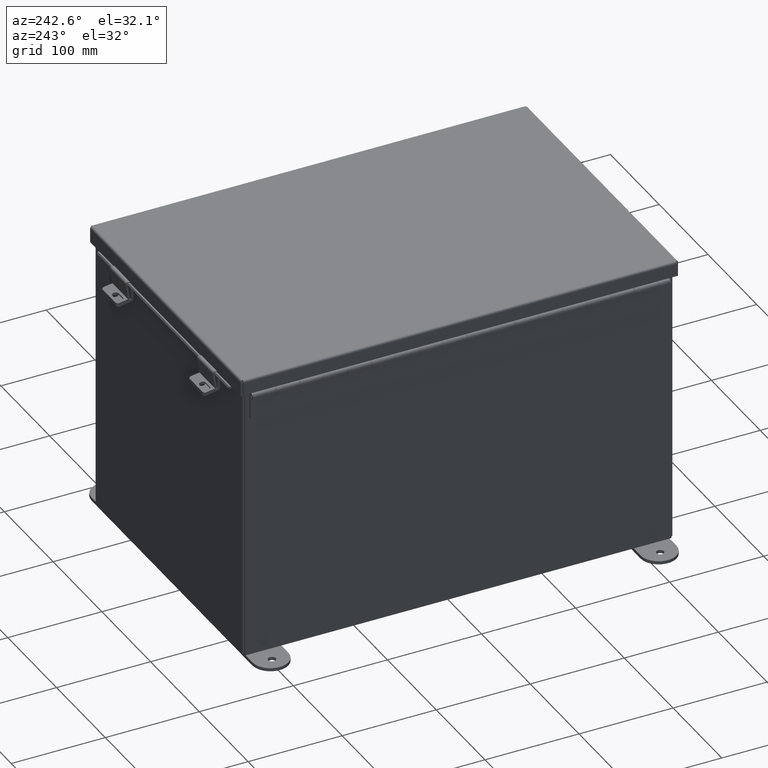
[diagram: clean part render]
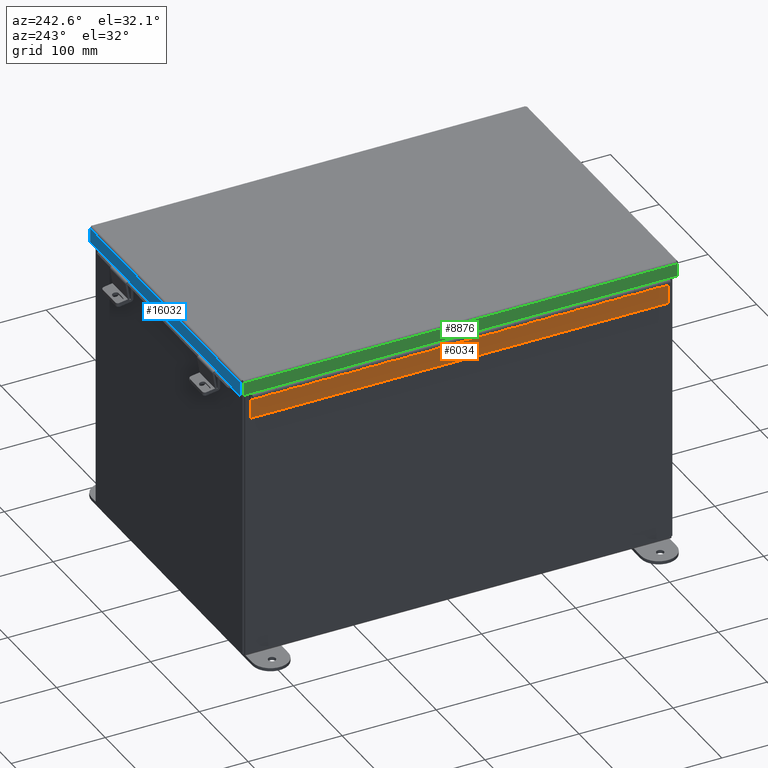
[diagram: same view with three faces highlighted in distinct colors, each labeled with its STEP entity id]
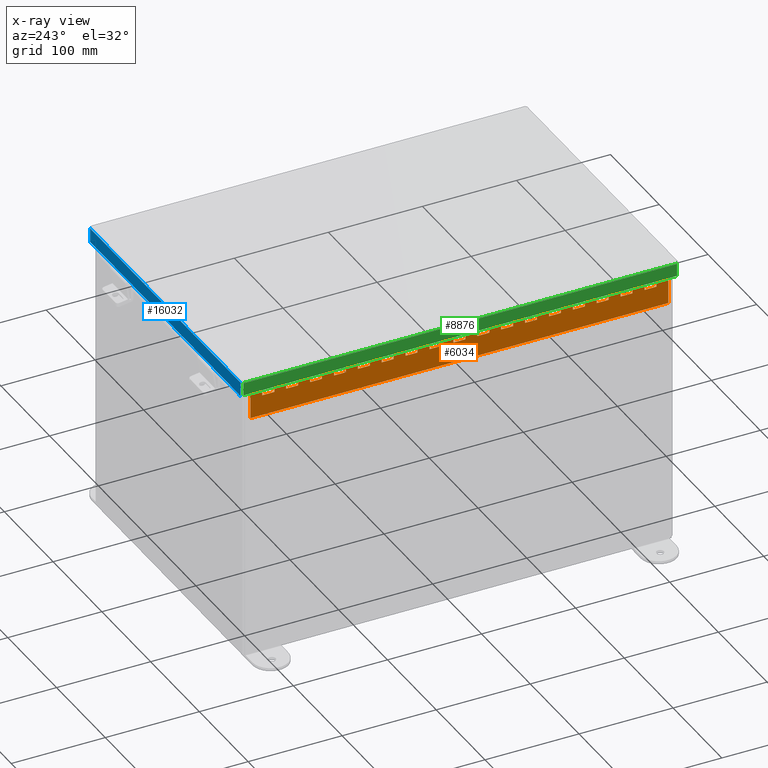
[diagram: x-ray of the same camera — body ghosted, the three highlighted faces saturated]
A machine part, auxiliary view with three faces highlighted in distinct colors.
The next image is the same camera in x-ray (body ghosted, the three faces saturated) — at least one of them is partly hidden behind the body in this view.
Their STEP definitions:

[orange] entity #6034 — the highlighted planar face has unit normal (1, -0, 0).
#38 = LINE ( 'NONE', #8423, #15231 ) ;
#95 = VERTEX_POINT ( 'NONE', #12333 ) ;
#100 = CARTESIAN_POINT ( 'NONE',  ( 0.1365000000000000400, 5.999999999999999100, 0.0000000000000000000 ) ) ;
#124 = ORIENTED_EDGE ( 'NONE', *, *, #18738, .T. ) ;
#129 = VERTEX_POINT ( 'NONE', #3945 ) ;
#144 = VERTEX_POINT ( 'NONE', #11291 ) ;
#153 = ORIENTED_EDGE ( 'NONE', *, *, #5771, .F. ) ;
#183 = VERTEX_POINT ( 'NONE', #10772 ) ;
#192 = EDGE_CURVE ( 'NONE', #2970, #16807, #1254, .T. ) ;
#195 = EDGE_CURVE ( 'NONE', #11732, #13993, #5187, .T. ) ;
#196 = CARTESIAN_POINT ( 'NONE',  ( 0.1364999999999760000, 13.00000000000000200, 0.0000000000000000000 ) ) ;
#204 = VERTEX_POINT ( 'NONE', #16718 ) ;
#244 = EDGE_CURVE ( 'NONE', #10377, #1183, #15499, .T. ) ;
#294 = ORIENTED_EDGE ( 'NONE', *, *, #8381, .F. ) ;
#312 = EDGE_CURVE ( 'NONE', #7252, #12183, #11566, .T. ) ;
#314 = EDGE_CURVE ( 'NONE', #3367, #3212, #14573, .T. ) ;
#352 = ORIENTED_EDGE ( 'NONE', *, *, #715, .T. ) ;
#361 = DIRECTION ( 'NONE',  ( -1.000000000000000000, 8.013101163815309000E-029, 2.603240987229339000E-029 ) ) ;
#444 = CARTESIAN_POINT ( 'NONE',  ( 1.354996604857474700E-013, 7.000000000000002700, 0.0000000000000000000 ) ) ;
#465 = DIRECTION ( 'NONE',  ( -1.000000000000000000, 8.005415366049211700E-015, 2.603240987229339000E-029 ) ) ;
#477 = DIRECTION ( 'NONE',  ( -1.000000000000000000, 8.013101163815309000E-029, 2.603240987229339000E-029 ) ) ;
#544 = CARTESIAN_POINT ( 'NONE',  ( 0.2730000000000000800, 0.5000000000000017800, 0.0000000000000000000 ) ) ;
#595 = CARTESIAN_POINT ( 'NONE',  ( 0.2729999999999760400, -4.999999999999999100, 0.0000000000000000000 ) ) ;
#603 = EDGE_CURVE ( 'NONE', #16024, #7019, #17812, .T. ) ;
#608 = CARTESIAN_POINT ( 'NONE',  ( 0.1365000000000000400, 7.999999999999997300, 0.0000000000000000000 ) ) ;
#655 = CARTESIAN_POINT ( 'NONE',  ( 0.0000000000000000000, 0.5000000000000017800, 0.0000000000000000000 ) ) ;
#697 = DIRECTION ( 'NONE',  ( -8.013101163815309000E-029, 1.000000000000000000, -1.066893105081175000E-030 ) ) ;
#715 = EDGE_CURVE ( 'NONE', #16024, #16790, #8144, .T. ) ;
#832 = LINE ( 'NONE', #5658, #19041 ) ;
#905 = CARTESIAN_POINT ( 'NONE',  ( 0.1365000000000000400, 0.0000000000000000000, 0.0000000000000000000 ) ) ;
#909 = LINE ( 'NONE', #7781, #4366 ) ;
#912 = LINE ( 'NONE', #17784, #16600 ) ;
#938 = CARTESIAN_POINT ( 'NONE',  ( 1.136448765364333600E-013, 11.00000000000000200, 0.0000000000000000000 ) ) ;
#965 = CARTESIAN_POINT ( 'NONE',  ( 0.1365000000000000400, 0.5000000000000017800, 0.0000000000000000000 ) ) ;
#983 = DIRECTION ( 'NONE',  ( -8.013101163815309000E-029, 1.000000000000000000, -1.066893105081175000E-030 ) ) ;
#1007 = VECTOR ( 'NONE', #10651, 39.37007874015748100 ) ;
#1019 = CARTESIAN_POINT ( 'NONE',  ( 1.136499999999999200, 0.0000000000000000000, 0.0000000000000000000 ) ) ;
#1097 = LINE ( 'NONE', #9145, #1565 ) ;
#1110 = EDGE_CURVE ( 'NONE', #14737, #5437, #6536, .T. ) ;
#1144 = DIRECTION ( 'NONE',  ( -8.013101163815309000E-029, 1.000000000000000000, -1.066893105081175000E-030 ) ) ;
#1183 = VERTEX_POINT ( 'NONE', #2029 ) ;
#1189 = CARTESIAN_POINT ( 'NONE',  ( 0.1365000000000000400, 7.500000000000000000, -1.202013117212275700E-014 ) ) ;
#1254 = LINE ( 'NONE', #10380, #16452 ) ;
#1299 = EDGE_CURVE ( 'NONE', #129, #1835, #11079, .T. ) ;
#1324 = DIRECTION ( 'NONE',  ( -8.013101163815309000E-029, 1.000000000000000000, -1.066893105081175000E-030 ) ) ;
#1345 = CARTESIAN_POINT ( 'NONE',  ( 0.2729999999999760400, -2.999999999999996400, 0.0000000000000000000 ) ) ;
#1365 = DIRECTION ( 'NONE',  ( -1.000000000000000000, 8.013101163815309000E-029, 2.603240987229339000E-029 ) ) ;
#1423 = DIRECTION ( 'NONE',  ( -8.013101163815309000E-029, 1.000000000000000000, -1.066893105081175000E-030 ) ) ;
#1477 = LINE ( 'NONE', #19115, #8363 ) ;
#1501 = DIRECTION ( 'NONE',  ( -1.000000000000000000, 8.013101163815309000E-029, 2.603240987229339000E-029 ) ) ;
#1549 = CARTESIAN_POINT ( 'NONE',  ( 1.136499999999975200, 17.50000000000000000, 1.202013117212275700E-014 ) ) ;
#1554 = EDGE_CURVE ( 'NONE', #14721, #3367, #11302, .T. ) ;
#1565 = VECTOR ( 'NONE', #2058, 39.37007874015748100 ) ;
#1649 = CARTESIAN_POINT ( 'NONE',  ( 0.1364999999999760000, 17.00000000000000000, 0.0000000000000000000 ) ) ;
#1688 = CARTESIAN_POINT ( 'NONE',  ( 0.2729999999999760400, -9.000000000000000000, 0.0000000000000000000 ) ) ;
#1695 = CARTESIAN_POINT ( 'NONE',  ( 0.2730000000000000800, 5.000000000000000000, 0.0000000000000000000 ) ) ;
#1729 = ORIENTED_EDGE ( 'NONE', *, *, #2931, .F. ) ;
#1740 = CARTESIAN_POINT ( 'NONE',  ( 1.136448765364333600E-013, 16.00000000000000400, 0.0000000000000000000 ) ) ;
#1756 = ORIENTED_EDGE ( 'NONE', *, *, #13957, .F. ) ;
#1766 = DIRECTION ( 'NONE',  ( 1.000000000000000000, -8.013101163815309000E-029, -2.603240987229339000E-029 ) ) ;
#1817 = EDGE_CURVE ( 'NONE', #13805, #8591, #14971, .T. ) ;
#1834 = CARTESIAN_POINT ( 'NONE',  ( 0.1364999999999978500, 10.50000000000000200, 0.0000000000000000000 ) ) ;
#1835 = VERTEX_POINT ( 'NONE', #15294 ) ;
#1929 = ORIENTED_EDGE ( 'NONE', *, *, #10341, .T. ) ;
#1962 = LINE ( 'NONE', #16345, #17143 ) ;
#1992 = CARTESIAN_POINT ( 'NONE',  ( 0.1364999999999760000, 15.50000000000000200, -1.202013117212275700E-014 ) ) ;
#2005 = VERTEX_POINT ( 'NONE', #11060 ) ;
#2023 = CARTESIAN_POINT ( 'NONE',  ( 0.1364999999999760000, 16.00000000000000400, 0.0000000000000000000 ) ) ;
#2028 = CARTESIAN_POINT ( 'NONE',  ( 0.0000000000000000000, 9.500000000000003600, 0.0000000000000000000 ) ) ;
#2029 = CARTESIAN_POINT ( 'NONE',  ( 0.1365000000000000400, 10.00000000000000000, 0.0000000000000000000 ) ) ;
#2042 = CARTESIAN_POINT ( 'NONE',  ( 0.2730000000000000800, -12.00000000000004300, 0.0000000000000000000 ) ) ;
#2058 = DIRECTION ( 'NONE',  ( -8.013101163815309000E-029, 1.000000000000000000, -1.066893105081175000E-030 ) ) ;
#2099 = VERTEX_POINT ( 'NONE', #9746 ) ;
#2100 = CARTESIAN_POINT ( 'NONE',  ( 0.2730000000000000800, 7.500000000000000000, 0.0000000000000000000 ) ) ;
#2156 = DIRECTION ( 'NONE',  ( -1.000000000000000000, 8.013101163815309000E-029, 2.603240987229339000E-029 ) ) ;
#2199 = EDGE_CURVE ( 'NONE', #13706, #5627, #18870, .T. ) ;
#2210 = CARTESIAN_POINT ( 'NONE',  ( -2.404026234424551500E-014, 14.50000000000000200, 1.202013117212275700E-014 ) ) ;
#2240 = CARTESIAN_POINT ( 'NONE',  ( -2.404026234424551500E-014, 12.50000000000000000, 0.0000000000000000000 ) ) ;
#2265 = VERTEX_POINT ( 'NONE', #5227 ) ;
#2341 = LINE ( 'NONE', #444, #13572 ) ;
#2387 = CARTESIAN_POINT ( 'NONE',  ( -2.404026234424551500E-014, 13.50000000000000200, 0.0000000000000000000 ) ) ;
#2459 = EDGE_CURVE ( 'NONE', #204, #15322, #14671, .T. ) ;
#2484 = VERTEX_POINT ( 'NONE', #1649 ) ;
#2491 = ORIENTED_EDGE ( 'NONE', *, *, #16812, .F. ) ;
#2492 = DIRECTION ( 'NONE',  ( -2.603240987229339000E-029, 1.066893105080910400E-030, -1.000000000000000000 ) ) ;
#2514 = VERTEX_POINT ( 'NONE', #2865 ) ;
#2564 = EDGE_CURVE ( 'NONE', #12861, #14060, #11895, .T. ) ;
#2568 = DIRECTION ( 'NONE',  ( -8.013101163815309000E-029, 1.000000000000000000, -1.066893105081175000E-030 ) ) ;
#2754 = CARTESIAN_POINT ( 'NONE',  ( 0.1365000000000000400, 0.0000000000000000000, 0.0000000000000000000 ) ) ;
#2832 = VECTOR ( 'NONE', #4100, 39.37007874015748100 ) ;
#2865 = CARTESIAN_POINT ( 'NONE',  ( 0.1365000000000000400, 9.000000000000001800, 0.0000000000000000000 ) ) ;
#2881 = VECTOR ( 'NONE', #2980, 39.37007874015748100 ) ;
#2931 = EDGE_CURVE ( 'NONE', #13805, #204, #1097, .T. ) ;
#2938 = DIRECTION ( 'NONE',  ( -1.000000000000000000, 8.013101163815309000E-029, 2.603240987229339000E-029 ) ) ;
#2950 = LINE ( 'NONE', #11375, #18132 ) ;
#2970 = VERTEX_POINT ( 'NONE', #17928 ) ;
#2980 = DIRECTION ( 'NONE',  ( -1.000000000000000000, 8.013101163815309000E-029, 2.603240987229339000E-029 ) ) ;
#2985 = VECTOR ( 'NONE', #3915, 39.37007874015748100 ) ;
#3080 = VECTOR ( 'NONE', #13561, 39.37007874015748100 ) ;
#3170 = DIRECTION ( 'NONE',  ( -8.013101163815309000E-029, 1.000000000000000000, -1.066893105081175000E-030 ) ) ;
#3212 = VERTEX_POINT ( 'NONE', #3750 ) ;
#3251 = VECTOR ( 'NONE', #15546, 39.37007874015748100 ) ;
#3258 = EDGE_CURVE ( 'NONE', #4843, #17446, #8233, .T. ) ;
#3314 = DIRECTION ( 'NONE',  ( -8.013101163815309000E-029, 1.000000000000000000, -1.066893105081175000E-030 ) ) ;
#3329 = LINE ( 'NONE', #9907, #10629 ) ;
#3367 = VERTEX_POINT ( 'NONE', #196 ) ;
#3384 = VECTOR ( 'NONE', #3809, 39.37007874015748100 ) ;
#3456 = LINE ( 'NONE', #12567, #2985 ) ;
#3500 = DIRECTION ( 'NONE',  ( -8.013101163815309000E-029, 1.000000000000000000, -1.066893105081175000E-030 ) ) ;
#3542 = EDGE_CURVE ( 'NONE', #13484, #17568, #7993, .T. ) ;
#3585 = CARTESIAN_POINT ( 'NONE',  ( 0.1365000000000000400, 3.999999999999991600, 0.0000000000000000000 ) ) ;
#3604 = EDGE_CURVE ( 'NONE', #17446, #12074, #10475, .T. ) ;
#3677 = VECTOR ( 'NONE', #983, 39.37007874015748100 ) ;
#3703 = VECTOR ( 'NONE', #11505, 39.37007874015748100 ) ;
#3711 = EDGE_CURVE ( 'NONE', #129, #3212, #4763, .T. ) ;
#3746 = VECTOR ( 'NONE', #8564, 39.37007874015748100 ) ;
#3750 = CARTESIAN_POINT ( 'NONE',  ( 0.1364999999999760000, 13.50000000000000200, 0.0000000000000000000 ) ) ;
#3809 = DIRECTION ( 'NONE',  ( -8.013101163815309000E-029, 1.000000000000000000, -1.066893105081175000E-030 ) ) ;
#3842 = VERTEX_POINT ( 'NONE', #11331 ) ;
#3868 = VECTOR ( 'NONE', #1766, 39.37007874015748100 ) ;
#3915 = DIRECTION ( 'NONE',  ( -1.000000000000000000, 8.013101163815309000E-029, 2.603240987229339000E-029 ) ) ;
#3925 = VERTEX_POINT ( 'NONE', #5478 ) ;
#3945 = CARTESIAN_POINT ( 'NONE',  ( 0.2729999999999760400, 13.50000000000000200, 0.0000000000000000000 ) ) ;
#3956 = DIRECTION ( 'NONE',  ( -8.013101163815309000E-029, 1.000000000000000000, -1.066893105081175000E-030 ) ) ;
#3981 = LINE ( 'NONE', #9419, #9914 ) ;
#4015 = CARTESIAN_POINT ( 'NONE',  ( 0.1364999999999760000, 11.00000000000000200, -1.202013117212275700E-014 ) ) ;
#4091 = VECTOR ( 'NONE', #13651, 39.37007874015748100 ) ;
#4093 = CARTESIAN_POINT ( 'NONE',  ( 0.2730000000000000800, 2.500000000000000000, 1.202013117212275700E-014 ) ) ;
#4096 = EDGE_CURVE ( 'NONE', #5858, #11599, #17872, .T. ) ;
#4100 = DIRECTION ( 'NONE',  ( -8.013101163815309000E-029, 1.000000000000000000, -1.066893105081175000E-030 ) ) ;
#4200 = EDGE_CURVE ( 'NONE', #11915, #14721, #15070, .T. ) ;
#4215 = ORIENTED_EDGE ( 'NONE', *, *, #7597, .F. ) ;
#4262 = CARTESIAN_POINT ( 'NONE',  ( 0.1364999999999760000, 14.50000000000000200, 0.0000000000000000000 ) ) ;
#4339 = LINE ( 'NONE', #9850, #15604 ) ;
#4366 = VECTOR ( 'NONE', #477, 39.37007874015748100 ) ;
#4391 = DIRECTION ( 'NONE',  ( -8.013101163815309000E-029, 1.000000000000000000, -1.066893105081175000E-030 ) ) ;
#4446 = CARTESIAN_POINT ( 'NONE',  ( 1.354996604857474700E-013, 8.000000000000001800, 0.0000000000000000000 ) ) ;
#4512 = ORIENTED_EDGE ( 'NONE', *, *, #14291, .T. ) ;
#4521 = CARTESIAN_POINT ( 'NONE',  ( 0.2730000000000000800, 5.999999999999999100, 1.202013117212275700E-014 ) ) ;
#4534 = ORIENTED_EDGE ( 'NONE', *, *, #1110, .F. ) ;
#4541 = CARTESIAN_POINT ( 'NONE',  ( 0.1365000000000000400, 0.0000000000000000000, 0.0000000000000000000 ) ) ;
#4602 = VECTOR ( 'NONE', #697, 39.37007874015748100 ) ;
#4645 = ORIENTED_EDGE ( 'NONE', *, *, #5965, .F. ) ;
#4656 = DIRECTION ( 'NONE',  ( -8.013101163815309000E-029, 1.000000000000000000, -1.066893105081175000E-030 ) ) ;
#4703 = EDGE_CURVE ( 'NONE', #4994, #16060, #15514, .T. ) ;
#4711 = VECTOR ( 'NONE', #17026, 39.37007874015748100 ) ;
#4763 = LINE ( 'NONE', #2387, #8216 ) ;
#4843 = VERTEX_POINT ( 'NONE', #13226 ) ;
#4910 = EDGE_CURVE ( 'NONE', #15322, #95, #17163, .T. ) ;
#4916 = LINE ( 'NONE', #2754, #16192 ) ;
#4934 = LINE ( 'NONE', #14718, #1007 ) ;
#4994 = VERTEX_POINT ( 'NONE', #4015 ) ;
#5011 = VERTEX_POINT ( 'NONE', #2100 ) ;
#5058 = DIRECTION ( 'NONE',  ( -8.013101163815309000E-029, 1.000000000000000000, -1.066893105081175000E-030 ) ) ;
#5102 = EDGE_CURVE ( 'NONE', #8743, #11862, #17375, .T. ) ;
#5131 = EDGE_CURVE ( 'NONE', #12591, #2265, #9503, .T. ) ;
#5181 = VECTOR ( 'NONE', #11794, 39.37007874015748100 ) ;
#5187 = LINE ( 'NONE', #12560, #15987 ) ;
#5189 = ORIENTED_EDGE ( 'NONE', *, *, #2459, .F. ) ;
#5220 = VECTOR ( 'NONE', #17202, 39.37007874015748100 ) ;
#5227 = CARTESIAN_POINT ( 'NONE',  ( 0.1365000000000000400, 5.000000000000000000, 0.0000000000000000000 ) ) ;
#5256 = CARTESIAN_POINT ( 'NONE',  ( 0.0000000000000000000, 0.0000000000000000000, 0.0000000000000000000 ) ) ;
#5258 = CARTESIAN_POINT ( 'NONE',  ( 0.1364999999999760000, 16.50000000000000000, 0.0000000000000000000 ) ) ;
#5308 = CARTESIAN_POINT ( 'NONE',  ( 0.1365000000000000400, 0.9999999999999992200, 0.0000000000000000000 ) ) ;
#5372 = EDGE_CURVE ( 'NONE', #7019, #5858, #1962, .T. ) ;
#5416 = VERTEX_POINT ( 'NONE', #8844 ) ;
#5437 = VERTEX_POINT ( 'NONE', #17408 ) ;
#5478 = CARTESIAN_POINT ( 'NONE',  ( 0.2730000000000000800, 9.000000000000001800, 0.0000000000000000000 ) ) ;
#5598 = VERTEX_POINT ( 'NONE', #11174 ) ;
#5627 = VERTEX_POINT ( 'NONE', #608 ) ;
#5658 = CARTESIAN_POINT ( 'NONE',  ( 0.2730000000000000800, -15.00000000000004400, 0.0000000000000000000 ) ) ;
#5711 = VECTOR ( 'NONE', #8368, 39.37007874015748100 ) ;
#5716 = CARTESIAN_POINT ( 'NONE',  ( 0.1365000000000000400, 0.0000000000000000000, 0.0000000000000000000 ) ) ;
#5722 = DIRECTION ( 'NONE',  ( -1.000000000000000000, 8.013101163815309000E-029, 2.603240987229339000E-029 ) ) ;
#5765 = VECTOR ( 'NONE', #13824, 39.37007874015748100 ) ;
#5771 = EDGE_CURVE ( 'NONE', #17568, #16807, #3329, .T. ) ;
#5858 = VERTEX_POINT ( 'NONE', #100 ) ;
#5965 = EDGE_CURVE ( 'NONE', #2099, #15695, #38, .T. ) ;
#5971 = ORIENTED_EDGE ( 'NONE', *, *, #16318, .F. ) ;
#5996 = VECTOR ( 'NONE', #3314, 39.37007874015748100 ) ;
#6031 = LINE ( 'NONE', #2042, #17308 ) ;
#6034 = ADVANCED_FACE ( 'NONE', ( #6531 ), #9883, .F. ) ;
#6057 = CARTESIAN_POINT ( 'NONE',  ( 1.136448765364333600E-013, 15.00000000000000000, 0.0000000000000000000 ) ) ;
#6102 = CARTESIAN_POINT ( 'NONE',  ( 0.1365000000000000400, 0.0000000000000000000, 0.0000000000000000000 ) ) ;
#6148 = EDGE_CURVE ( 'NONE', #8570, #3842, #16417, .T. ) ;
#6187 = DIRECTION ( 'NONE',  ( -8.013101163815309000E-029, 1.000000000000000000, -1.066893105081175000E-030 ) ) ;
#6208 = DIRECTION ( 'NONE',  ( -8.013101163815309000E-029, 1.000000000000000000, -1.066893105081175000E-030 ) ) ;
#6215 = ORIENTED_EDGE ( 'NONE', *, *, #14699, .F. ) ;
#6243 = CARTESIAN_POINT ( 'NONE',  ( 0.2729999999999760400, -4.000000000000000000, 0.0000000000000000000 ) ) ;
#6258 = DIRECTION ( 'NONE',  ( -1.000000000000000000, 8.005415366049211700E-015, 2.603240987229339000E-029 ) ) ;
#6323 = CARTESIAN_POINT ( 'NONE',  ( 0.2730000000000000800, -14.00000000000005000, 1.202013117212275700E-014 ) ) ;
#6332 = DIRECTION ( 'NONE',  ( -1.000000000000000000, 8.013101163815311200E-029, 2.603240987229339500E-029 ) ) ;
#6441 = ORIENTED_EDGE ( 'NONE', *, *, #192, .T. ) ;
#6491 = LINE ( 'NONE', #6543, #9895 ) ;
#6531 = FACE_OUTER_BOUND ( 'NONE', #6651, .T. ) ;
#6536 = LINE ( 'NONE', #16390, #6988 ) ;
#6543 = CARTESIAN_POINT ( 'NONE',  ( 0.1365000000000000400, 0.0000000000000000000, 0.0000000000000000000 ) ) ;
#6579 = EDGE_CURVE ( 'NONE', #2484, #10755, #14303, .T. ) ;
#6600 = CARTESIAN_POINT ( 'NONE',  ( 0.0000000000000000000, 6.500000000000000900, 1.202013117212275700E-014 ) ) ;
#6613 = CARTESIAN_POINT ( 'NONE',  ( 0.1365000000000000400, 2.000000000000002700, 0.0000000000000000000 ) ) ;
#6651 = EDGE_LOOP ( 'NONE', ( #17792, #18322, #18521, #19027, #14526, #18474, #10405, #294, #14099, #12736, #17346, #9474, #6441, #153, #14876, #17628, #13992, #5971, #17047, #7345, #15421, #7114, #12116, #10754, #11270, #6215, #4645, #14415, #15404, #6693, #13903, #11153, #14612, #11941, #15364, #14128, #11231, #15755, #17036, #8524, #1929, #9263, #7175, #8826, #4512, #13298, #13083, #1756, #124, #14840, #10211, #17634, #352, #8641, #8419, #13936, #15095, #11408, #14414, #7290, #15811, #4534, #17152, #4215, #17879, #2491, #11392, #17338, #15989, #15014, #5189, #1729 ) ) ;
#6659 = DIRECTION ( 'NONE',  ( -8.013101163815309000E-029, 1.000000000000000000, -1.066893105081175000E-030 ) ) ;
#6662 = DIRECTION ( 'NONE',  ( -8.013101163815309000E-029, 1.000000000000000000, -1.066893105081175000E-030 ) ) ;
#6693 = ORIENTED_EDGE ( 'NONE', *, *, #4703, .F. ) ;
#6802 = VECTOR ( 'NONE', #15657, 39.37007874015748100 ) ;
#6815 = CARTESIAN_POINT ( 'NONE',  ( -2.404026234424551500E-014, 11.50000000000000200, 0.0000000000000000000 ) ) ;
#6988 = VECTOR ( 'NONE', #6187, 39.37007874015748100 ) ;
#7005 = CARTESIAN_POINT ( 'NONE',  ( 1.136499999999977400, 17.50000000000000000, 1.202013117212275700E-014 ) ) ;
#7019 = VERTEX_POINT ( 'NONE', #4521 ) ;
#7048 = CARTESIAN_POINT ( 'NONE',  ( 0.2729999999999978600, 10.00000000000000000, 1.202013117212275700E-014 ) ) ;
#7114 = ORIENTED_EDGE ( 'NONE', *, *, #314, .F. ) ;
#7115 = VERTEX_POINT ( 'NONE', #15566 ) ;
#7116 = VECTOR ( 'NONE', #18562, 39.37007874015748100 ) ;
#7175 = ORIENTED_EDGE ( 'NONE', *, *, #2199, .F. ) ;
#7194 = VECTOR ( 'NONE', #14204, 39.37007874015748100 ) ;
#7219 = DIRECTION ( 'NONE',  ( -1.000000000000000000, 8.013101163815309000E-029, 2.603240987229339000E-029 ) ) ;
#7252 = VERTEX_POINT ( 'NONE', #11029 ) ;
#7290 = ORIENTED_EDGE ( 'NONE', *, *, #17197, .F. ) ;
#7345 = ORIENTED_EDGE ( 'NONE', *, *, #1299, .F. ) ;
#7374 = LINE ( 'NONE', #2028, #10319 ) ;
#7407 = VECTOR ( 'NONE', #9168, 39.37007874015748100 ) ;
#7463 = LINE ( 'NONE', #9452, #12273 ) ;
#7492 = AXIS2_PLACEMENT_3D ( 'NONE', #1549, #2492, #361 ) ;
#7564 = EDGE_CURVE ( 'NONE', #7115, #11813, #7374, .T. ) ;
#7566 = CARTESIAN_POINT ( 'NONE',  ( 0.1365000000000000400, 0.0000000000000000000, 0.0000000000000000000 ) ) ;
#7597 = EDGE_CURVE ( 'NONE', #12819, #13531, #13803, .T. ) ;
#7657 = VERTEX_POINT ( 'NONE', #10904 ) ;
#7659 = CARTESIAN_POINT ( 'NONE',  ( 0.0000000000000000000, 1.500000000000000900, 0.0000000000000000000 ) ) ;
#7731 = EDGE_CURVE ( 'NONE', #5011, #13706, #8505, .T. ) ;
#7781 = CARTESIAN_POINT ( 'NONE',  ( -2.404026234424551500E-014, 10.50000000000000200, 1.202013117212275700E-014 ) ) ;
#7805 = EDGE_CURVE ( 'NONE', #12819, #16229, #12418, .T. ) ;
#7812 = VECTOR ( 'NONE', #4656, 39.37007874015748100 ) ;
#7820 = LINE ( 'NONE', #14132, #15623 ) ;
#7836 = EDGE_CURVE ( 'NONE', #7657, #16060, #11018, .T. ) ;
#7986 = EDGE_CURVE ( 'NONE', #11732, #17886, #909, .T. ) ;
#7993 = LINE ( 'NONE', #6057, #4091 ) ;
#8066 = DIRECTION ( 'NONE',  ( -8.013101163815309000E-029, 1.000000000000000000, -1.066893105081175000E-030 ) ) ;
#8092 = DIRECTION ( 'NONE',  ( -1.000000000000000000, 8.005415366049211700E-015, 2.603240987229339000E-029 ) ) ;
#8108 = CARTESIAN_POINT ( 'NONE',  ( 0.0000000000000000000, 5.500000000000001800, 0.0000000000000000000 ) ) ;
#8121 = DIRECTION ( 'NONE',  ( -1.000000000000000000, 8.005415366049211700E-015, 2.603240987229339000E-029 ) ) ;
#8144 = LINE ( 'NONE', #8108, #12498 ) ;
#8216 = VECTOR ( 'NONE', #7219, 39.37007874015748100 ) ;
#8233 = LINE ( 'NONE', #5256, #3868 ) ;
#8235 = EDGE_CURVE ( 'NONE', #2970, #14707, #15656, .T. ) ;
#8363 = VECTOR ( 'NONE', #13984, 39.37007874015748100 ) ;
#8368 = DIRECTION ( 'NONE',  ( -1.000000000000000000, 8.005415366049211700E-015, 2.603240987229339000E-029 ) ) ;
#8381 = EDGE_CURVE ( 'NONE', #7252, #16079, #17282, .T. ) ;
#8413 = CARTESIAN_POINT ( 'NONE',  ( 0.2730000000000000800, -0.9999999999999992200, 0.0000000000000000000 ) ) ;
#8419 = ORIENTED_EDGE ( 'NONE', *, *, #5131, .F. ) ;
#8423 = CARTESIAN_POINT ( 'NONE',  ( 1.136448765364333600E-013, 12.00000000000000200, 0.0000000000000000000 ) ) ;
#8505 = LINE ( 'NONE', #1688, #4602 ) ;
#8524 = ORIENTED_EDGE ( 'NONE', *, *, #14268, .F. ) ;
#8533 = LINE ( 'NONE', #18902, #15926 ) ;
#8561 = EDGE_CURVE ( 'NONE', #11915, #183, #9645, .T. ) ;
#8564 = DIRECTION ( 'NONE',  ( -1.000000000000000000, 8.013101163815309000E-029, 2.603240987229339000E-029 ) ) ;
#8570 = VERTEX_POINT ( 'NONE', #3585 ) ;
#8591 = VERTEX_POINT ( 'NONE', #965 ) ;
#8613 = EDGE_CURVE ( 'NONE', #5416, #8570, #912, .T. ) ;
#8641 = ORIENTED_EDGE ( 'NONE', *, *, #18878, .F. ) ;
#8724 = VECTOR ( 'NONE', #8092, 39.37007874015748100 ) ;
#8743 = VERTEX_POINT ( 'NONE', #12025 ) ;
#8826 = ORIENTED_EDGE ( 'NONE', *, *, #7731, .F. ) ;
#8844 = CARTESIAN_POINT ( 'NONE',  ( 0.2730000000000000800, 3.999999999999991600, 0.0000000000000000000 ) ) ;
#8859 = DIRECTION ( 'NONE',  ( -1.000000000000000000, 8.005415366049211700E-015, 2.603240987229339000E-029 ) ) ;
#8874 = DIRECTION ( 'NONE',  ( -8.013101163815309000E-029, 1.000000000000000000, -1.066893105081175000E-030 ) ) ;
#8889 = CARTESIAN_POINT ( 'NONE',  ( 0.2730000000000000800, -13.00000000000003700, 0.0000000000000000000 ) ) ;
#8985 = DIRECTION ( 'NONE',  ( -1.000000000000000000, 8.005415366049211700E-015, 2.603240987229339000E-029 ) ) ;
#8994 = VECTOR ( 'NONE', #10820, 39.37007874015748100 ) ;
#9057 = CARTESIAN_POINT ( 'NONE',  ( 0.1364999999999760000, 11.50000000000000200, -1.202013117212275700E-014 ) ) ;
#9145 = CARTESIAN_POINT ( 'NONE',  ( 0.2730000000000000800, -16.00000000000003900, 0.0000000000000000000 ) ) ;
#9168 = DIRECTION ( 'NONE',  ( -1.000000000000000000, 8.005415366049211700E-015, 2.603240987229339000E-029 ) ) ;
#9173 = CARTESIAN_POINT ( 'NONE',  ( 0.1365000000000000400, 0.0000000000000000000, 0.0000000000000000000 ) ) ;
#9256 = CARTESIAN_POINT ( 'NONE',  ( 0.1365000000000000400, 0.0000000000000000000, 0.0000000000000000000 ) ) ;
#9263 = ORIENTED_EDGE ( 'NONE', *, *, #10605, .F. ) ;
#9322 = CARTESIAN_POINT ( 'NONE',  ( 0.2729999999999956900, 10.50000000000000200, 1.202013117212275700E-014 ) ) ;
#9334 = VERTEX_POINT ( 'NONE', #12774 ) ;
#9348 = VECTOR ( 'NONE', #465, 39.37007874015748100 ) ;
#9355 = LINE ( 'NONE', #6600, #17686 ) ;
#9374 = CARTESIAN_POINT ( 'NONE',  ( 0.1365000000000000400, 0.0000000000000000000, 0.0000000000000000000 ) ) ;
#9416 = VECTOR ( 'NONE', #10436, 39.37007874015748100 ) ;
#9419 = CARTESIAN_POINT ( 'NONE',  ( 0.1365000000000000400, 0.0000000000000000000, 0.0000000000000000000 ) ) ;
#9429 = DIRECTION ( 'NONE',  ( -8.013101163815309000E-029, 1.000000000000000000, -1.066893105081175000E-030 ) ) ;
#9452 = CARTESIAN_POINT ( 'NONE',  ( 0.0000000000000000000, 3.500000000000003600, 0.0000000000000000000 ) ) ;
#9472 = VECTOR ( 'NONE', #3170, 39.37007874015748100 ) ;
#9474 = ORIENTED_EDGE ( 'NONE', *, *, #8235, .F. ) ;
#9503 = LINE ( 'NONE', #15810, #5181 ) ;
#9544 = CARTESIAN_POINT ( 'NONE',  ( 0.2729999999999760400, 14.99999999999999800, 0.0000000000000000000 ) ) ;
#9598 = EDGE_CURVE ( 'NONE', #5598, #16177, #11465, .T. ) ;
#9645 = LINE ( 'NONE', #2240, #5765 ) ;
#9709 = VECTOR ( 'NONE', #1144, 39.37007874015748100 ) ;
#9746 = CARTESIAN_POINT ( 'NONE',  ( 0.2729999999999760400, 11.99999999999999800, 0.0000000000000000000 ) ) ;
#9835 = EDGE_CURVE ( 'NONE', #5598, #13484, #7820, .T. ) ;
#9850 = CARTESIAN_POINT ( 'NONE',  ( 0.2729999999999760400, -6.999999999999997300, 0.0000000000000000000 ) ) ;
#9857 = LINE ( 'NONE', #18842, #13320 ) ;
#9883 = PLANE ( 'NONE',  #7492 ) ;
#9895 = VECTOR ( 'NONE', #6208, 39.37007874015748100 ) ;
#9907 = CARTESIAN_POINT ( 'NONE',  ( 0.1365000000000000400, 0.0000000000000000000, 0.0000000000000000000 ) ) ;
#9914 = VECTOR ( 'NONE', #4391, 39.37007874015748100 ) ;
#9937 = EDGE_CURVE ( 'NONE', #1183, #17886, #9857, .T. ) ;
#10089 = CARTESIAN_POINT ( 'NONE',  ( 0.1365000000000000400, 0.0000000000000000000, 0.0000000000000000000 ) ) ;
#10094 = CARTESIAN_POINT ( 'NONE',  ( 0.2730000000000000800, 4.499999999999993800, 0.0000000000000000000 ) ) ;
#10211 = ORIENTED_EDGE ( 'NONE', *, *, #5372, .F. ) ;
#10222 = CARTESIAN_POINT ( 'NONE',  ( 1.354996604857474700E-013, 9.000000000000001800, 0.0000000000000000000 ) ) ;
#10269 = EDGE_CURVE ( 'NONE', #7115, #10377, #4339, .T. ) ;
#10319 = VECTOR ( 'NONE', #2156, 39.37007874015748100 ) ;
#10341 = EDGE_CURVE ( 'NONE', #18876, #2005, #3456, .T. ) ;
#10377 = VERTEX_POINT ( 'NONE', #7048 ) ;
#10380 = CARTESIAN_POINT ( 'NONE',  ( -2.404026234424551500E-014, 15.50000000000000200, 0.0000000000000000000 ) ) ;
#10405 = ORIENTED_EDGE ( 'NONE', *, *, #14838, .F. ) ;
#10436 = DIRECTION ( 'NONE',  ( -8.013101163815309000E-029, 1.000000000000000000, -1.066893105081175000E-030 ) ) ;
#10475 = LINE ( 'NONE', #14429, #18362 ) ;
#10492 = CARTESIAN_POINT ( 'NONE',  ( 0.1364999999999760000, 12.00000000000000200, 0.0000000000000000000 ) ) ;
#10535 = CARTESIAN_POINT ( 'NONE',  ( 0.2730000000000000800, 3.500000000000003600, 0.0000000000000000000 ) ) ;
#10605 = EDGE_CURVE ( 'NONE', #5627, #2005, #18845, .T. ) ;
#10629 = VECTOR ( 'NONE', #12384, 39.37007874015748100 ) ;
#10639 = CARTESIAN_POINT ( 'NONE',  ( 0.1365000000000000400, 0.0000000000000000000, 0.0000000000000000000 ) ) ;
#10651 = DIRECTION ( 'NONE',  ( -8.013101163815309000E-029, 1.000000000000000000, -1.066893105081175000E-030 ) ) ;
#10754 = ORIENTED_EDGE ( 'NONE', *, *, #4200, .F. ) ;
#10755 = VERTEX_POINT ( 'NONE', #18389 ) ;
#10772 = CARTESIAN_POINT ( 'NONE',  ( 0.1364999999999760000, 12.50000000000000000, 0.0000000000000000000 ) ) ;
#10781 = DIRECTION ( 'NONE',  ( -1.000000000000000000, 8.005415366049211700E-015, 2.603240987229339000E-029 ) ) ;
#10820 = DIRECTION ( 'NONE',  ( -1.000000000000000000, 8.005415366049211700E-015, 2.603240987229339000E-029 ) ) ;
#10875 = VECTOR ( 'NONE', #8874, 39.37007874015748100 ) ;
#10904 = CARTESIAN_POINT ( 'NONE',  ( 0.2729999999999760400, 11.50000000000000200, 0.0000000000000000000 ) ) ;
#10954 = DIRECTION ( 'NONE',  ( -8.013101163815309000E-029, 1.000000000000000000, -1.066893105081175000E-030 ) ) ;
#10965 = VECTOR ( 'NONE', #15045, 39.37007874015748100 ) ;
#10968 = EDGE_CURVE ( 'NONE', #13993, #4994, #17216, .T. ) ;
#11018 = LINE ( 'NONE', #6815, #3251 ) ;
#11029 = CARTESIAN_POINT ( 'NONE',  ( 0.2729999999999760400, 16.50000000000000000, 0.0000000000000000000 ) ) ;
#11060 = CARTESIAN_POINT ( 'NONE',  ( 0.1365000000000000400, 8.500000000000003600, 0.0000000000000000000 ) ) ;
#11079 = LINE ( 'NONE', #1345, #7194 ) ;
#11153 = ORIENTED_EDGE ( 'NONE', *, *, #195, .F. ) ;
#11174 = CARTESIAN_POINT ( 'NONE',  ( 0.2729999999999760400, 14.50000000000000200, 1.202013117212275700E-014 ) ) ;
#11215 = CARTESIAN_POINT ( 'NONE',  ( 0.1365000000000000400, 6.500000000000000900, 0.0000000000000000000 ) ) ;
#11231 = ORIENTED_EDGE ( 'NONE', *, *, #7564, .T. ) ;
#11270 = ORIENTED_EDGE ( 'NONE', *, *, #8561, .T. ) ;
#11291 = CARTESIAN_POINT ( 'NONE',  ( 0.2730000000000000800, 6.500000000000000900, 1.202013117212275700E-014 ) ) ;
#11302 = LINE ( 'NONE', #12618, #7407 ) ;
#11331 = CARTESIAN_POINT ( 'NONE',  ( 0.1365000000000000400, 4.499999999999993800, 0.0000000000000000000 ) ) ;
#11374 = EDGE_CURVE ( 'NONE', #13531, #14737, #2950, .T. ) ;
#11375 = CARTESIAN_POINT ( 'NONE',  ( 1.354996604857474700E-013, 3.000000000000001800, 0.0000000000000000000 ) ) ;
#11385 = CARTESIAN_POINT ( 'NONE',  ( 0.2730000000000000800, 7.999999999999997300, 0.0000000000000000000 ) ) ;
#11392 = ORIENTED_EDGE ( 'NONE', *, *, #5102, .F. ) ;
#11408 = ORIENTED_EDGE ( 'NONE', *, *, #6148, .F. ) ;
#11420 = EDGE_CURVE ( 'NONE', #2514, #11813, #13273, .T. ) ;
#11424 = LINE ( 'NONE', #17944, #14432 ) ;
#11465 = LINE ( 'NONE', #2210, #3703 ) ;
#11500 = CARTESIAN_POINT ( 'NONE',  ( 0.2730000000000000800, 1.500000000000000900, 0.0000000000000000000 ) ) ;
#11505 = DIRECTION ( 'NONE',  ( -1.000000000000000000, 8.013101163815309000E-029, 2.603240987229339000E-029 ) ) ;
#11566 = LINE ( 'NONE', #12752, #2881 ) ;
#11599 = VERTEX_POINT ( 'NONE', #11215 ) ;
#11674 = LINE ( 'NONE', #9374, #7812 ) ;
#11714 = VECTOR ( 'NONE', #15600, 39.37007874015748100 ) ;
#11732 = VERTEX_POINT ( 'NONE', #9322 ) ;
#11760 = EDGE_CURVE ( 'NONE', #18398, #8743, #832, .T. ) ;
#11794 = DIRECTION ( 'NONE',  ( -1.000000000000000000, 8.005415366049211700E-015, 2.603240987229339000E-029 ) ) ;
#11813 = VERTEX_POINT ( 'NONE', #17352 ) ;
#11831 = DIRECTION ( 'NONE',  ( -1.000000000000000000, 8.013101163815309000E-029, 2.603240987229339000E-029 ) ) ;
#11837 = VERTEX_POINT ( 'NONE', #13006 ) ;
#11862 = VERTEX_POINT ( 'NONE', #6613 ) ;
#11895 = LINE ( 'NONE', #9173, #3677 ) ;
#11915 = VERTEX_POINT ( 'NONE', #17443 ) ;
#11941 = ORIENTED_EDGE ( 'NONE', *, *, #9937, .F. ) ;
#11971 = LINE ( 'NONE', #17100, #18464 ) ;
#12025 = CARTESIAN_POINT ( 'NONE',  ( 0.2730000000000000800, 1.999999999999998400, 1.202013117212275700E-014 ) ) ;
#12074 = VERTEX_POINT ( 'NONE', #7005 ) ;
#12086 = DIRECTION ( 'NONE',  ( -1.000000000000000000, 8.005415366049211700E-015, 2.603240987229339000E-029 ) ) ;
#12116 = ORIENTED_EDGE ( 'NONE', *, *, #1554, .F. ) ;
#12183 = VERTEX_POINT ( 'NONE', #5258 ) ;
#12273 = VECTOR ( 'NONE', #11831, 39.37007874015748100 ) ;
#12282 = VECTOR ( 'NONE', #3956, 39.37007874015748100 ) ;
#12333 = CARTESIAN_POINT ( 'NONE',  ( 0.1365000000000000400, 1.500000000000000900, 0.0000000000000000000 ) ) ;
#12384 = DIRECTION ( 'NONE',  ( -8.013101163815309000E-029, 1.000000000000000000, -1.066893105081175000E-030 ) ) ;
#12418 = LINE ( 'NONE', #18316, #14928 ) ;
#12498 = VECTOR ( 'NONE', #2938, 39.37007874015748100 ) ;
#12560 = CARTESIAN_POINT ( 'NONE',  ( 0.2729999999999760400, -5.999999999999998200, 1.202013117212275700E-014 ) ) ;
#12567 = CARTESIAN_POINT ( 'NONE',  ( 0.0000000000000000000, 8.500000000000003600, 0.0000000000000000000 ) ) ;
#12591 = VERTEX_POINT ( 'NONE', #1695 ) ;
#12618 = CARTESIAN_POINT ( 'NONE',  ( 1.136448765364333600E-013, 13.00000000000000200, 0.0000000000000000000 ) ) ;
#12667 = LINE ( 'NONE', #1740, #8724 ) ;
#12736 = ORIENTED_EDGE ( 'NONE', *, *, #16011, .F. ) ;
#12752 = CARTESIAN_POINT ( 'NONE',  ( -2.404026234424551500E-014, 16.50000000000000000, 0.0000000000000000000 ) ) ;
#12774 = CARTESIAN_POINT ( 'NONE',  ( 0.2730000000000000800, 6.999999999999998200, 0.0000000000000000000 ) ) ;
#12819 = VERTEX_POINT ( 'NONE', #4093 ) ;
#12852 = CARTESIAN_POINT ( 'NONE',  ( 1.136448765364333600E-013, 14.00000000000000200, 0.0000000000000000000 ) ) ;
#12861 = VERTEX_POINT ( 'NONE', #17816 ) ;
#12871 = EDGE_CURVE ( 'NONE', #7657, #2099, #14141, .T. ) ;
#12981 = VECTOR ( 'NONE', #8859, 39.37007874015748100 ) ;
#13006 = CARTESIAN_POINT ( 'NONE',  ( 0.1364999999999760000, 14.00000000000000200, 0.0000000000000000000 ) ) ;
#13035 = EDGE_CURVE ( 'NONE', #14010, #5437, #7463, .T. ) ;
#13083 = ORIENTED_EDGE ( 'NONE', *, *, #17497, .F. ) ;
#13183 = CARTESIAN_POINT ( 'NONE',  ( 0.2729999999999760400, 12.99999999999999800, 0.0000000000000000000 ) ) ;
#13226 = CARTESIAN_POINT ( 'NONE',  ( 0.1365000000000000400, 0.0000000000000000000, 0.0000000000000000000 ) ) ;
#13273 = LINE ( 'NONE', #9256, #13729 ) ;
#13298 = ORIENTED_EDGE ( 'NONE', *, *, #2564, .F. ) ;
#13320 = VECTOR ( 'NONE', #17988, 39.37007874015748100 ) ;
#13381 = VECTOR ( 'NONE', #5722, 39.37007874015748100 ) ;
#13484 = VERTEX_POINT ( 'NONE', #9544 ) ;
#13521 = LINE ( 'NONE', #10222, #5711 ) ;
#13531 = VERTEX_POINT ( 'NONE', #15122 ) ;
#13561 = DIRECTION ( 'NONE',  ( -1.000000000000000000, 8.005415366049211700E-015, 2.603240987229339000E-029 ) ) ;
#13572 = VECTOR ( 'NONE', #6258, 39.37007874015748100 ) ;
#13651 = DIRECTION ( 'NONE',  ( -1.000000000000000000, 8.005415366049211700E-015, 2.603240987229339000E-029 ) ) ;
#13706 = VERTEX_POINT ( 'NONE', #11385 ) ;
#13729 = VECTOR ( 'NONE', #5058, 39.37007874015748100 ) ;
#13803 = LINE ( 'NONE', #6323, #5996 ) ;
#13805 = VERTEX_POINT ( 'NONE', #544 ) ;
#13824 = DIRECTION ( 'NONE',  ( -1.000000000000000000, 8.013101163815309000E-029, 2.603240987229339000E-029 ) ) ;
#13903 = ORIENTED_EDGE ( 'NONE', *, *, #10968, .F. ) ;
#13907 = CARTESIAN_POINT ( 'NONE',  ( 0.1364999999999760000, 15.00000000000000000, -1.202013117212275700E-014 ) ) ;
#13936 = ORIENTED_EDGE ( 'NONE', *, *, #16347, .F. ) ;
#13957 = EDGE_CURVE ( 'NONE', #144, #9334, #15470, .T. ) ;
#13984 = DIRECTION ( 'NONE',  ( -1.000000000000000000, 8.013101163815309000E-029, 2.603240987229339000E-029 ) ) ;
#13989 = CARTESIAN_POINT ( 'NONE',  ( 0.2730000000000000800, 8.500000000000003600, 0.0000000000000000000 ) ) ;
#13992 = ORIENTED_EDGE ( 'NONE', *, *, #9598, .T. ) ;
#13993 = VERTEX_POINT ( 'NONE', #18548 ) ;
#14010 = VERTEX_POINT ( 'NONE', #10535 ) ;
#14060 = VERTEX_POINT ( 'NONE', #1189 ) ;
#14099 = ORIENTED_EDGE ( 'NONE', *, *, #312, .T. ) ;
#14128 = ORIENTED_EDGE ( 'NONE', *, *, #10269, .F. ) ;
#14130 = VECTOR ( 'NONE', #8066, 39.37007874015748100 ) ;
#14132 = CARTESIAN_POINT ( 'NONE',  ( 0.2729999999999760400, -1.999999999999997300, 1.202013117212275700E-014 ) ) ;
#14141 = LINE ( 'NONE', #595, #6802 ) ;
#14204 = DIRECTION ( 'NONE',  ( -8.013101163815309000E-029, 1.000000000000000000, -1.066893105081175000E-030 ) ) ;
#14265 = VERTEX_POINT ( 'NONE', #10094 ) ;
#14268 = EDGE_CURVE ( 'NONE', #18876, #3925, #4934, .T. ) ;
#14291 = EDGE_CURVE ( 'NONE', #5011, #14060, #1477, .T. ) ;
#14303 = LINE ( 'NONE', #6102, #17769 ) ;
#14414 = ORIENTED_EDGE ( 'NONE', *, *, #8613, .F. ) ;
#14415 = ORIENTED_EDGE ( 'NONE', *, *, #12871, .F. ) ;
#14429 = CARTESIAN_POINT ( 'NONE',  ( 1.136499999999999200, 0.0000000000000000000, 0.0000000000000000000 ) ) ;
#14432 = VECTOR ( 'NONE', #6659, 39.37007874015748100 ) ;
#14475 = DIRECTION ( 'NONE',  ( -8.013101163815309000E-029, 1.000000000000000000, -1.066893105081175000E-030 ) ) ;
#14526 = ORIENTED_EDGE ( 'NONE', *, *, #16408, .T. ) ;
#14573 = LINE ( 'NONE', #16759, #14130 ) ;
#14612 = ORIENTED_EDGE ( 'NONE', *, *, #7986, .T. ) ;
#14648 = CARTESIAN_POINT ( 'NONE',  ( 0.2729999999999978600, -11.00000000000004800, 0.0000000000000000000 ) ) ;
#14671 = LINE ( 'NONE', #17619, #17704 ) ;
#14699 = EDGE_CURVE ( 'NONE', #15695, #183, #4916, .T. ) ;
#14703 = VECTOR ( 'NONE', #16278, 39.37007874015748100 ) ;
#14707 = VERTEX_POINT ( 'NONE', #16099 ) ;
#14718 = CARTESIAN_POINT ( 'NONE',  ( 0.2729999999999760400, -7.999999999999996400, 0.0000000000000000000 ) ) ;
#14721 = VERTEX_POINT ( 'NONE', #13183 ) ;
#14737 = VERTEX_POINT ( 'NONE', #17569 ) ;
#14821 = VERTEX_POINT ( 'NONE', #2023 ) ;
#14838 = EDGE_CURVE ( 'NONE', #16079, #2484, #17790, .T. ) ;
#14840 = ORIENTED_EDGE ( 'NONE', *, *, #4096, .F. ) ;
#14876 = ORIENTED_EDGE ( 'NONE', *, *, #3542, .F. ) ;
#14928 = VECTOR ( 'NONE', #16538, 39.37007874015748100 ) ;
#14971 = LINE ( 'NONE', #655, #3746 ) ;
#15014 = ORIENTED_EDGE ( 'NONE', *, *, #4910, .F. ) ;
#15045 = DIRECTION ( 'NONE',  ( -8.013101163815309000E-029, 1.000000000000000000, -1.066893105081175000E-030 ) ) ;
#15051 = VECTOR ( 'NONE', #3500, 39.37007874015748100 ) ;
#15059 = CARTESIAN_POINT ( 'NONE',  ( 0.1365000000000000400, 5.500000000000001800, 0.0000000000000000000 ) ) ;
#15070 = LINE ( 'NONE', #6243, #3384 ) ;
#15095 = ORIENTED_EDGE ( 'NONE', *, *, #15598, .T. ) ;
#15122 = CARTESIAN_POINT ( 'NONE',  ( 0.2730000000000000800, 2.999999999999997300, 0.0000000000000000000 ) ) ;
#15160 = DIRECTION ( 'NONE',  ( -1.000000000000000000, 8.005415366049211700E-015, 2.603240987229339000E-029 ) ) ;
#15171 = CARTESIAN_POINT ( 'NONE',  ( 0.2729999999999760400, 17.00000000000000000, 0.0000000000000000000 ) ) ;
#15231 = VECTOR ( 'NONE', #12086, 39.37007874015748100 ) ;
#15294 = CARTESIAN_POINT ( 'NONE',  ( 0.2729999999999760400, 14.00000000000000000, 1.202013117212275700E-014 ) ) ;
#15322 = VERTEX_POINT ( 'NONE', #5308 ) ;
#15364 = ORIENTED_EDGE ( 'NONE', *, *, #244, .F. ) ;
#15403 = CARTESIAN_POINT ( 'NONE',  ( 1.354996604857474700E-013, 2.000000000000002700, 0.0000000000000000000 ) ) ;
#15404 = ORIENTED_EDGE ( 'NONE', *, *, #7836, .T. ) ;
#15408 = EDGE_CURVE ( 'NONE', #18398, #95, #17768, .T. ) ;
#15421 = ORIENTED_EDGE ( 'NONE', *, *, #3711, .T. ) ;
#15470 = LINE ( 'NONE', #17435, #9709 ) ;
#15499 = LINE ( 'NONE', #17672, #4711 ) ;
#15514 = LINE ( 'NONE', #4541, #15051 ) ;
#15546 = DIRECTION ( 'NONE',  ( -1.000000000000000000, 8.013101163815309000E-029, 2.603240987229339000E-029 ) ) ;
#15566 = CARTESIAN_POINT ( 'NONE',  ( 0.2730000000000000800, 9.500000000000003600, 0.0000000000000000000 ) ) ;
#15598 = EDGE_CURVE ( 'NONE', #14265, #3842, #11971, .T. ) ;
#15600 = DIRECTION ( 'NONE',  ( -8.013101163815309000E-029, 1.000000000000000000, -1.066893105081175000E-030 ) ) ;
#15604 = VECTOR ( 'NONE', #14475, 39.37007874015748100 ) ;
#15609 = CARTESIAN_POINT ( 'NONE',  ( 0.2730000000000000800, 0.0000000000000000000, 0.0000000000000000000 ) ) ;
#15623 = VECTOR ( 'NONE', #1324, 39.37007874015748100 ) ;
#15648 = LINE ( 'NONE', #8889, #14703 ) ;
#15656 = LINE ( 'NONE', #8413, #11714 ) ;
#15657 = DIRECTION ( 'NONE',  ( -8.013101163815309000E-029, 1.000000000000000000, -1.066893105081175000E-030 ) ) ;
#15695 = VERTEX_POINT ( 'NONE', #10492 ) ;
#15755 = ORIENTED_EDGE ( 'NONE', *, *, #11420, .F. ) ;
#15810 = CARTESIAN_POINT ( 'NONE',  ( 1.354996604857474700E-013, 5.000000000000004400, 0.0000000000000000000 ) ) ;
#15811 = ORIENTED_EDGE ( 'NONE', *, *, #13035, .T. ) ;
#15837 = EDGE_CURVE ( 'NONE', #1835, #11837, #16890, .T. ) ;
#15926 = VECTOR ( 'NONE', #6332, 39.37007874015748100 ) ;
#15987 = VECTOR ( 'NONE', #9429, 39.37007874015748100 ) ;
#15989 = ORIENTED_EDGE ( 'NONE', *, *, #15408, .T. ) ;
#16011 = EDGE_CURVE ( 'NONE', #14821, #12183, #18026, .T. ) ;
#16024 = VERTEX_POINT ( 'NONE', #16166 ) ;
#16060 = VERTEX_POINT ( 'NONE', #9057 ) ;
#16079 = VERTEX_POINT ( 'NONE', #15171 ) ;
#16099 = CARTESIAN_POINT ( 'NONE',  ( 0.2729999999999760400, 16.00000000000000000, 0.0000000000000000000 ) ) ;
#16166 = CARTESIAN_POINT ( 'NONE',  ( 0.2730000000000000800, 5.500000000000001800, 0.0000000000000000000 ) ) ;
#16177 = VERTEX_POINT ( 'NONE', #4262 ) ;
#16192 = VECTOR ( 'NONE', #2568, 39.37007874015748100 ) ;
#16229 = VERTEX_POINT ( 'NONE', #19028 ) ;
#16278 = DIRECTION ( 'NONE',  ( -8.013101163815309000E-029, 1.000000000000000000, -1.066893105081175000E-030 ) ) ;
#16318 = EDGE_CURVE ( 'NONE', #11837, #16177, #3981, .T. ) ;
#16345 = CARTESIAN_POINT ( 'NONE',  ( 1.354996604857474700E-013, 5.999999999999999100, 0.0000000000000000000 ) ) ;
#16347 = EDGE_CURVE ( 'NONE', #14265, #12591, #6031, .T. ) ;
#16390 = CARTESIAN_POINT ( 'NONE',  ( 0.1365000000000000400, 0.0000000000000000000, 0.0000000000000000000 ) ) ;
#16408 = EDGE_CURVE ( 'NONE', #12074, #10755, #8533, .T. ) ;
#16417 = LINE ( 'NONE', #10639, #9472 ) ;
#16452 = VECTOR ( 'NONE', #1501, 39.37007874015748100 ) ;
#16538 = DIRECTION ( 'NONE',  ( -1.000000000000000000, 8.013101163815309000E-029, 2.603240987229339000E-029 ) ) ;
#16600 = VECTOR ( 'NONE', #8985, 39.37007874015748100 ) ;
#16718 = CARTESIAN_POINT ( 'NONE',  ( 0.2730000000000000800, 0.9999999999999992200, 0.0000000000000000000 ) ) ;
#16759 = CARTESIAN_POINT ( 'NONE',  ( 0.1365000000000000400, 0.0000000000000000000, 0.0000000000000000000 ) ) ;
#16790 = VERTEX_POINT ( 'NONE', #15059 ) ;
#16807 = VERTEX_POINT ( 'NONE', #1992 ) ;
#16812 = EDGE_CURVE ( 'NONE', #11862, #16229, #6491, .T. ) ;
#16890 = LINE ( 'NONE', #12852, #8994 ) ;
#17026 = DIRECTION ( 'NONE',  ( -1.000000000000000000, 8.005415366049211700E-015, 2.603240987229339000E-029 ) ) ;
#17036 = ORIENTED_EDGE ( 'NONE', *, *, #18943, .F. ) ;
#17047 = ORIENTED_EDGE ( 'NONE', *, *, #15837, .F. ) ;
#17091 = EDGE_CURVE ( 'NONE', #14707, #14821, #12667, .T. ) ;
#17100 = CARTESIAN_POINT ( 'NONE',  ( 0.0000000000000000000, 4.499999999999993800, 0.0000000000000000000 ) ) ;
#17143 = VECTOR ( 'NONE', #8121, 39.37007874015748100 ) ;
#17152 = ORIENTED_EDGE ( 'NONE', *, *, #11374, .F. ) ;
#17163 = LINE ( 'NONE', #905, #12282 ) ;
#17197 = EDGE_CURVE ( 'NONE', #14010, #5416, #15648, .T. ) ;
#17202 = DIRECTION ( 'NONE',  ( -8.013101163815309000E-029, 1.000000000000000000, -1.066893105081175000E-030 ) ) ;
#17216 = LINE ( 'NONE', #938, #9348 ) ;
#17282 = LINE ( 'NONE', #15609, #9416 ) ;
#17308 = VECTOR ( 'NONE', #1423, 39.37007874015748100 ) ;
#17338 = ORIENTED_EDGE ( 'NONE', *, *, #11760, .F. ) ;
#17346 = ORIENTED_EDGE ( 'NONE', *, *, #17091, .F. ) ;
#17352 = CARTESIAN_POINT ( 'NONE',  ( 0.1365000000000000400, 9.500000000000003600, 0.0000000000000000000 ) ) ;
#17375 = LINE ( 'NONE', #15403, #12981 ) ;
#17408 = CARTESIAN_POINT ( 'NONE',  ( 0.1365000000000000400, 3.500000000000003600, -1.202013117212275700E-014 ) ) ;
#17435 = CARTESIAN_POINT ( 'NONE',  ( 0.2729999999999760400, -9.999999999999996400, 1.202013117212275700E-014 ) ) ;
#17443 = CARTESIAN_POINT ( 'NONE',  ( 0.2729999999999760400, 12.50000000000000000, 0.0000000000000000000 ) ) ;
#17446 = VERTEX_POINT ( 'NONE', #1019 ) ;
#17497 = EDGE_CURVE ( 'NONE', #9334, #12861, #2341, .T. ) ;
#17568 = VERTEX_POINT ( 'NONE', #13907 ) ;
#17569 = CARTESIAN_POINT ( 'NONE',  ( 0.1365000000000000400, 3.000000000000001800, -1.202013117212275700E-014 ) ) ;
#17619 = CARTESIAN_POINT ( 'NONE',  ( 1.354996604857474700E-013, 0.9999999999999992200, 0.0000000000000000000 ) ) ;
#17628 = ORIENTED_EDGE ( 'NONE', *, *, #9835, .F. ) ;
#17634 = ORIENTED_EDGE ( 'NONE', *, *, #603, .F. ) ;
#17672 = CARTESIAN_POINT ( 'NONE',  ( 1.354996604857474700E-013, 10.00000000000000000, 0.0000000000000000000 ) ) ;
#17686 = VECTOR ( 'NONE', #18083, 39.37007874015748100 ) ;
#17704 = VECTOR ( 'NONE', #15160, 39.37007874015748100 ) ;
#17768 = LINE ( 'NONE', #7659, #13381 ) ;
#17769 = VECTOR ( 'NONE', #6662, 39.37007874015748100 ) ;
#17784 = CARTESIAN_POINT ( 'NONE',  ( 1.354996604857474700E-013, 3.999999999999991600, 0.0000000000000000000 ) ) ;
#17790 = LINE ( 'NONE', #19000, #3080 ) ;
#17792 = ORIENTED_EDGE ( 'NONE', *, *, #1817, .T. ) ;
#17812 = LINE ( 'NONE', #14648, #10875 ) ;
#17816 = CARTESIAN_POINT ( 'NONE',  ( 0.1365000000000000400, 6.999999999999998200, -1.202013117212275700E-014 ) ) ;
#17872 = LINE ( 'NONE', #5716, #5220 ) ;
#17879 = ORIENTED_EDGE ( 'NONE', *, *, #7805, .T. ) ;
#17886 = VERTEX_POINT ( 'NONE', #1834 ) ;
#17928 = CARTESIAN_POINT ( 'NONE',  ( 0.2729999999999760400, 15.50000000000000200, 0.0000000000000000000 ) ) ;
#17944 = CARTESIAN_POINT ( 'NONE',  ( 0.1365000000000000400, 0.0000000000000000000, 0.0000000000000000000 ) ) ;
#17988 = DIRECTION ( 'NONE',  ( -8.013101163815309000E-029, 1.000000000000000000, -1.066893105081175000E-030 ) ) ;
#18026 = LINE ( 'NONE', #7566, #2832 ) ;
#18083 = DIRECTION ( 'NONE',  ( -1.000000000000000000, 8.013101163815309000E-029, 2.603240987229339000E-029 ) ) ;
#18132 = VECTOR ( 'NONE', #10781, 39.37007874015748100 ) ;
#18154 = EDGE_CURVE ( 'NONE', #4843, #8591, #11674, .T. ) ;
#18316 = CARTESIAN_POINT ( 'NONE',  ( 0.0000000000000000000, 2.500000000000000000, 1.202013117212275700E-014 ) ) ;
#18322 = ORIENTED_EDGE ( 'NONE', *, *, #18154, .F. ) ;
#18362 = VECTOR ( 'NONE', #18758, 39.37007874015748100 ) ;
#18389 = CARTESIAN_POINT ( 'NONE',  ( 0.1364999999999760000, 17.50000000000000000, 0.0000000000000000000 ) ) ;
#18398 = VERTEX_POINT ( 'NONE', #11500 ) ;
#18464 = VECTOR ( 'NONE', #1365, 39.37007874015748100 ) ;
#18474 = ORIENTED_EDGE ( 'NONE', *, *, #6579, .F. ) ;
#18521 = ORIENTED_EDGE ( 'NONE', *, *, #3258, .T. ) ;
#18548 = CARTESIAN_POINT ( 'NONE',  ( 0.2729999999999760400, 11.00000000000000000, 0.0000000000000000000 ) ) ;
#18562 = DIRECTION ( 'NONE',  ( -1.000000000000000000, 8.005415366049211700E-015, 2.603240987229339000E-029 ) ) ;
#18738 = EDGE_CURVE ( 'NONE', #144, #11599, #9355, .T. ) ;
#18758 = DIRECTION ( 'NONE',  ( -7.805279981978149200E-018, 1.000000000000000000, -5.526371306450018500E-031 ) ) ;
#18842 = CARTESIAN_POINT ( 'NONE',  ( 0.1365000000000000400, 0.0000000000000000000, 0.0000000000000000000 ) ) ;
#18845 = LINE ( 'NONE', #10089, #10965 ) ;
#18870 = LINE ( 'NONE', #4446, #7116 ) ;
#18876 = VERTEX_POINT ( 'NONE', #13989 ) ;
#18878 = EDGE_CURVE ( 'NONE', #2265, #16790, #11424, .T. ) ;
#18902 = CARTESIAN_POINT ( 'NONE',  ( -2.404026234424551500E-014, 17.50000000000000000, 0.0000000000000000000 ) ) ;
#18943 = EDGE_CURVE ( 'NONE', #3925, #2514, #13521, .T. ) ;
#19000 = CARTESIAN_POINT ( 'NONE',  ( 1.114593981415019400E-013, 17.00000000000000000, 0.0000000000000000000 ) ) ;
#19027 = ORIENTED_EDGE ( 'NONE', *, *, #3604, .T. ) ;
#19028 = CARTESIAN_POINT ( 'NONE',  ( 0.1365000000000000400, 2.500000000000000000, 0.0000000000000000000 ) ) ;
#19041 = VECTOR ( 'NONE', #10954, 39.37007874015748100 ) ;
#19115 = CARTESIAN_POINT ( 'NONE',  ( 0.0000000000000000000, 7.500000000000000000, 0.0000000000000000000 ) ) ;

[blue] entity #16032 — the highlighted planar face has unit normal (-0, -1, -0).
#612 = DIRECTION ( 'NONE',  ( 1.000000000000000000, -4.576345208695165100E-029, 5.546899479520645900E-018 ) ) ;
#1068 = VERTEX_POINT ( 'NONE', #10362 ) ;
#1192 = LINE ( 'NONE', #16026, #16396 ) ;
#1470 = PLANE ( 'NONE',  #18961 ) ;
#1696 = EDGE_CURVE ( 'NONE', #3058, #8871, #5597, .T. ) ;
#2185 = DIRECTION ( 'NONE',  ( 0.0000000000000000000, 3.328006943901143600E-030, 1.000000000000000000 ) ) ;
#2390 = FACE_OUTER_BOUND ( 'NONE', #18647, .T. ) ;
#2862 = DIRECTION ( 'NONE',  ( 1.000000000000000000, -4.576273056739371600E-029, -0.0000000000000000000 ) ) ;
#2989 = CARTESIAN_POINT ( 'NONE',  ( -3.201384367575308500E-018, 9.156249999999980500, 0.6123000000000005100 ) ) ;
#3058 = VERTEX_POINT ( 'NONE', #11765 ) ;
#3115 = CARTESIAN_POINT ( 'NONE',  ( -6.074478932188137400, 9.156249999999978700, 0.01300000000000010700 ) ) ;
#3153 = CARTESIAN_POINT ( 'NONE',  ( 5.324478932188133000, 9.156249999999984000, 0.6122999999999982900 ) ) ;
#3509 = ORIENTED_EDGE ( 'NONE', *, *, #1696, .F. ) ;
#3564 = ORIENTED_EDGE ( 'NONE', *, *, #14951, .T. ) ;
#3764 = DIRECTION ( 'NONE',  ( 4.569848716297987400E-029, -1.000000000000000000, 3.569293475308533200E-015 ) ) ;
#3774 = ORIENTED_EDGE ( 'NONE', *, *, #13731, .T. ) ;
#4355 = EDGE_CURVE ( 'NONE', #9940, #7024, #12302, .T. ) ;
#4356 = ORIENTED_EDGE ( 'NONE', *, *, #4355, .F. ) ;
#5597 = LINE ( 'NONE', #7569, #8981 ) ;
#5820 = DIRECTION ( 'NONE',  ( 0.0000000000000000000, -3.569293475308533200E-015, -1.000000000000000000 ) ) ;
#5953 = ORIENTED_EDGE ( 'NONE', *, *, #16383, .F. ) ;
#6007 = VECTOR ( 'NONE', #15838, 39.37007874015748100 ) ;
#6948 = LINE ( 'NONE', #18705, #6007 ) ;
#7024 = VERTEX_POINT ( 'NONE', #9866 ) ;
#7569 = CARTESIAN_POINT ( 'NONE',  ( -5.324478932188133000, 9.156249999999982200, 0.5967115427318761000 ) ) ;
#7591 = CARTESIAN_POINT ( 'NONE',  ( -3.201384367575308500E-018, 9.156249999999980500, 0.6123000000000005100 ) ) ;
#8548 = VECTOR ( 'NONE', #19065, 39.37007874015748100 ) ;
#8614 = DIRECTION ( 'NONE',  ( -1.000000000000000000, 4.576273056739371600E-029, -0.0000000000000000000 ) ) ;
#8846 = CARTESIAN_POINT ( 'NONE',  ( 6.156249999999998200, 9.156249999999978700, 0.01300000000000010700 ) ) ;
#8871 = VERTEX_POINT ( 'NONE', #17174 ) ;
#8937 = EDGE_CURVE ( 'NONE', #14571, #1068, #6948, .T. ) ;
#8981 = VECTOR ( 'NONE', #2185, 39.37007874015748100 ) ;
#9011 = VECTOR ( 'NONE', #612, 39.37007874015748100 ) ;
#9866 = CARTESIAN_POINT ( 'NONE',  ( 5.324478932188132100, 9.156249999999980500, 0.5967115427318761000 ) ) ;
#9940 = VERTEX_POINT ( 'NONE', #10173 ) ;
#9994 = VERTEX_POINT ( 'NONE', #16139 ) ;
#10173 = CARTESIAN_POINT ( 'NONE',  ( 5.324478932188133000, 9.156249999999980500, 0.6123000000000005100 ) ) ;
#10362 = CARTESIAN_POINT ( 'NONE',  ( -6.074478932188137400, 9.156249999999980500, 0.6122999999999982900 ) ) ;
#10382 = ORIENTED_EDGE ( 'NONE', *, *, #13866, .F. ) ;
#10576 = DIRECTION ( 'NONE',  ( -7.009925220120072300E-014, -7.009925220120086200E-014, -1.000000000000000000 ) ) ;
#10625 = VECTOR ( 'NONE', #17851, 39.37007874015748100 ) ;
#10743 = VERTEX_POINT ( 'NONE', #15516 ) ;
#11765 = CARTESIAN_POINT ( 'NONE',  ( -5.324478932188133000, 9.156249999999980500, 0.5967115427318761000 ) ) ;
#12302 = LINE ( 'NONE', #3153, #16248 ) ;
#12411 = CARTESIAN_POINT ( 'NONE',  ( 6.074478932188135600, 9.156249999999978700, 0.0000000000000000000 ) ) ;
#13731 = EDGE_CURVE ( 'NONE', #9940, #9994, #14335, .T. ) ;
#13866 = EDGE_CURVE ( 'NONE', #10743, #9994, #14548, .T. ) ;
#14335 = LINE ( 'NONE', #7591, #9011 ) ;
#14337 = LINE ( 'NONE', #8846, #18280 ) ;
#14375 = EDGE_CURVE ( 'NONE', #14571, #10743, #14337, .T. ) ;
#14548 = LINE ( 'NONE', #12411, #10625 ) ;
#14571 = VERTEX_POINT ( 'NONE', #3115 ) ;
#14951 = EDGE_CURVE ( 'NONE', #1068, #8871, #16416, .T. ) ;
#15247 = ORIENTED_EDGE ( 'NONE', *, *, #8937, .T. ) ;
#15516 = CARTESIAN_POINT ( 'NONE',  ( 6.074478932188137400, 9.156249999999978700, 0.01300000000000010700 ) ) ;
#15838 = DIRECTION ( 'NONE',  ( 0.0000000000000000000, 3.569293475308533200E-015, 1.000000000000000000 ) ) ;
#16026 = CARTESIAN_POINT ( 'NONE',  ( 5.324478932188133000, 9.156249999999982200, 0.5967115427318761000 ) ) ;
#16032 = ADVANCED_FACE ( 'NONE', ( #2390 ), #1470, .F. ) ;
#16139 = CARTESIAN_POINT ( 'NONE',  ( 6.074478932188135600, 9.156249999999980500, 0.6123000000000005100 ) ) ;
#16248 = VECTOR ( 'NONE', #10576, 39.37007874015748100 ) ;
#16383 = EDGE_CURVE ( 'NONE', #7024, #3058, #1192, .T. ) ;
#16396 = VECTOR ( 'NONE', #8614, 39.37007874015748100 ) ;
#16416 = LINE ( 'NONE', #2989, #8548 ) ;
#16423 = ORIENTED_EDGE ( 'NONE', *, *, #14375, .F. ) ;
#17174 = CARTESIAN_POINT ( 'NONE',  ( -5.324478932188132100, 9.156249999999980500, 0.6123000000000005100 ) ) ;
#17656 = CARTESIAN_POINT ( 'NONE',  ( 9.604153102725926100E-018, 9.156249999999978700, -3.278217592397115700E-014 ) ) ;
#17851 = DIRECTION ( 'NONE',  ( -0.0000000000000000000, 3.569293475308533200E-015, 1.000000000000000000 ) ) ;
#18280 = VECTOR ( 'NONE', #2862, 39.37007874015748100 ) ;
#18647 = EDGE_LOOP ( 'NONE', ( #4356, #3774, #10382, #16423, #15247, #3564, #3509, #5953 ) ) ;
#18705 = CARTESIAN_POINT ( 'NONE',  ( -6.074478932188135600, 9.156249999999978700, -3.278217592397115700E-014 ) ) ;
#18961 = AXIS2_PLACEMENT_3D ( 'NONE', #17656, #3764, #5820 ) ;
#19065 = DIRECTION ( 'NONE',  ( 1.000000000000000000, -4.576345208695165100E-029, 5.546899479520645900E-018 ) ) ;

[green] entity #8876 — the highlighted planar face has unit normal (1, -0, 0).
#450 = CARTESIAN_POINT ( 'NONE',  ( 6.156250000000000000, -9.074478932188156900, 0.01300000000000010700 ) ) ;
#2050 = DIRECTION ( 'NONE',  ( 3.971430846686188400E-015, 3.056836007731421100E-030, 1.000000000000000000 ) ) ;
#2069 = PLANE ( 'NONE',  #5469 ) ;
#2227 = VECTOR ( 'NONE', #18877, 39.37007874015748100 ) ;
#2525 = ORIENTED_EDGE ( 'NONE', *, *, #4853, .T. ) ;
#2591 = VECTOR ( 'NONE', #9209, 39.37007874015748100 ) ;
#3101 = CARTESIAN_POINT ( 'NONE',  ( 6.156250000000000000, -9.156250000000021300, 0.01300000000000010700 ) ) ;
#4816 = CARTESIAN_POINT ( 'NONE',  ( 6.156250000000002700, -9.074478932188156900, 0.5503000000000010100 ) ) ;
#4853 = EDGE_CURVE ( 'NONE', #17383, #16841, #13680, .T. ) ;
#5469 = AXIS2_PLACEMENT_3D ( 'NONE', #15114, #8509, #2050 ) ;
#5608 = VERTEX_POINT ( 'NONE', #450 ) ;
#5865 = VECTOR ( 'NONE', #16624, 39.37007874015748100 ) ;
#5994 = VECTOR ( 'NONE', #9538, 39.37007874015748100 ) ;
#6500 = CARTESIAN_POINT ( 'NONE',  ( 6.156250000000000000, 9.074478932188114300, -2.404026234424551500E-014 ) ) ;
#7069 = EDGE_CURVE ( 'NONE', #12781, #5608, #14725, .T. ) ;
#8088 = ORIENTED_EDGE ( 'NONE', *, *, #12641, .F. ) ;
#8509 = DIRECTION ( 'NONE',  ( -1.000000000000000000, 4.573918003452740400E-029, 3.971430846686188400E-015 ) ) ;
#8876 = ADVANCED_FACE ( 'NONE', ( #11279 ), #2069, .F. ) ;
#9078 = CARTESIAN_POINT ( 'NONE',  ( 6.156250000000002700, -1.387266559282633700E-017, 0.5502999999999987900 ) ) ;
#9209 = DIRECTION ( 'NONE',  ( 4.550355251618405500E-029, -1.000000000000000000, -5.967176504932513700E-017 ) ) ;
#9538 = DIRECTION ( 'NONE',  ( 3.971430846686188400E-015, 3.056836007731421100E-030, 1.000000000000000000 ) ) ;
#9786 = CARTESIAN_POINT ( 'NONE',  ( 6.156250000000002700, 9.074478932188112500, 0.5503000000000010100 ) ) ;
#10318 = LINE ( 'NONE', #6500, #5994 ) ;
#10351 = ORIENTED_EDGE ( 'NONE', *, *, #7069, .F. ) ;
#11279 = FACE_OUTER_BOUND ( 'NONE', #14164, .T. ) ;
#12287 = ORIENTED_EDGE ( 'NONE', *, *, #17266, .T. ) ;
#12641 = EDGE_CURVE ( 'NONE', #5608, #16841, #13915, .T. ) ;
#12781 = VERTEX_POINT ( 'NONE', #17913 ) ;
#13680 = LINE ( 'NONE', #9078, #5865 ) ;
#13915 = LINE ( 'NONE', #17863, #2227 ) ;
#14164 = EDGE_LOOP ( 'NONE', ( #10351, #12287, #2525, #8088 ) ) ;
#14725 = LINE ( 'NONE', #3101, #2591 ) ;
#15114 = CARTESIAN_POINT ( 'NONE',  ( 6.156250000000000000, -9.070589041463374400E-018, -2.404026234424551500E-014 ) ) ;
#16624 = DIRECTION ( 'NONE',  ( 4.576273056739368800E-029, -1.000000000000000000, -3.328006943901143600E-030 ) ) ;
#16841 = VERTEX_POINT ( 'NONE', #4816 ) ;
#17266 = EDGE_CURVE ( 'NONE', #12781, #17383, #10318, .T. ) ;
#17383 = VERTEX_POINT ( 'NONE', #9786 ) ;
#17863 = CARTESIAN_POINT ( 'NONE',  ( 6.156250000000000000, -9.074478932188156900, 0.0000000000000000000 ) ) ;
#17913 = CARTESIAN_POINT ( 'NONE',  ( 6.156250000000000000, 9.074478932188112500, 0.01300000000000229300 ) ) ;
#18877 = DIRECTION ( 'NONE',  ( 3.971430846686188400E-015, 3.056836007731421100E-030, 1.000000000000000000 ) ) ;